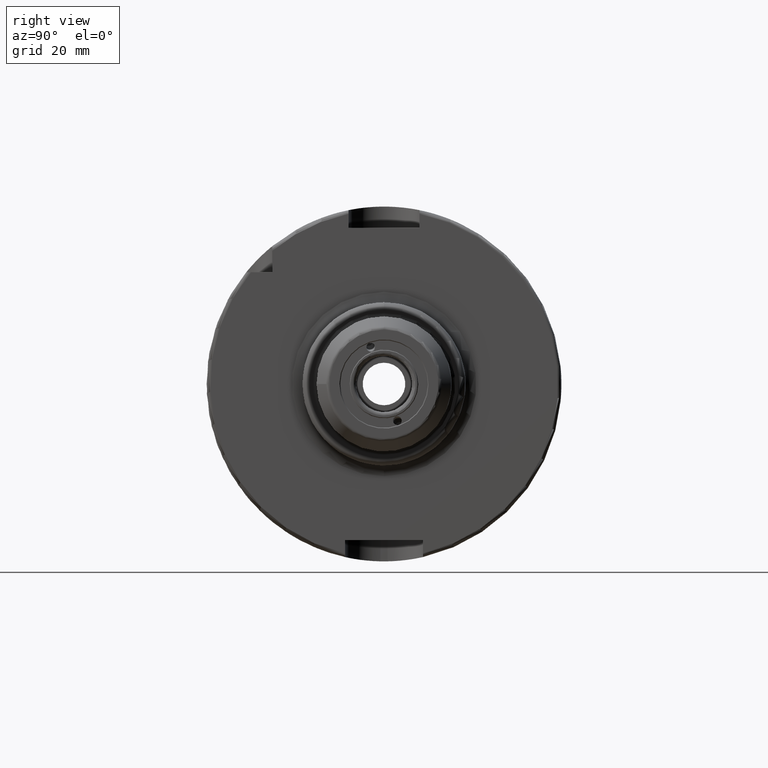
[diagram: clean part render]
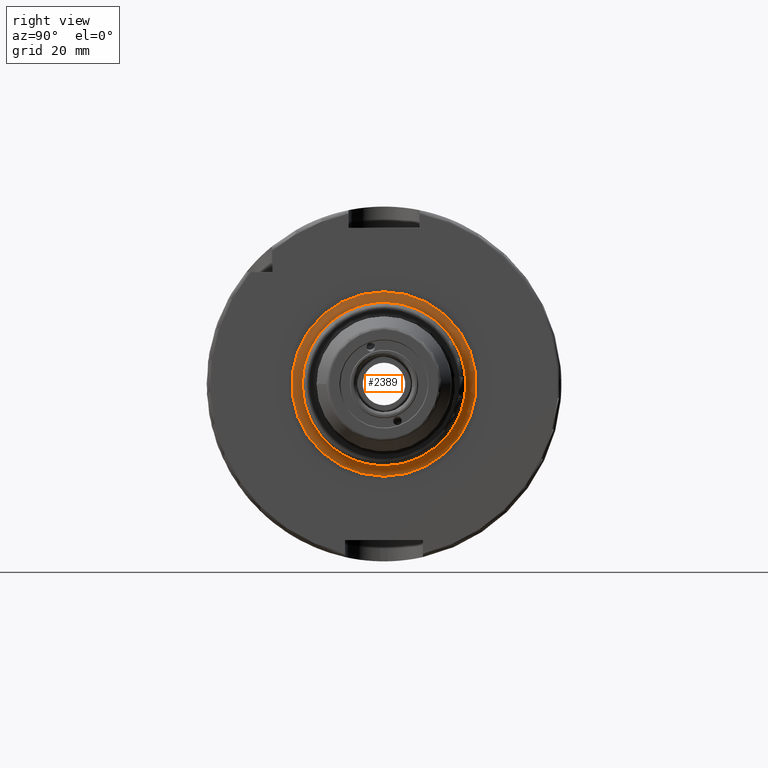
[diagram: same view with one face highlighted and labeled with its STEP entity id]
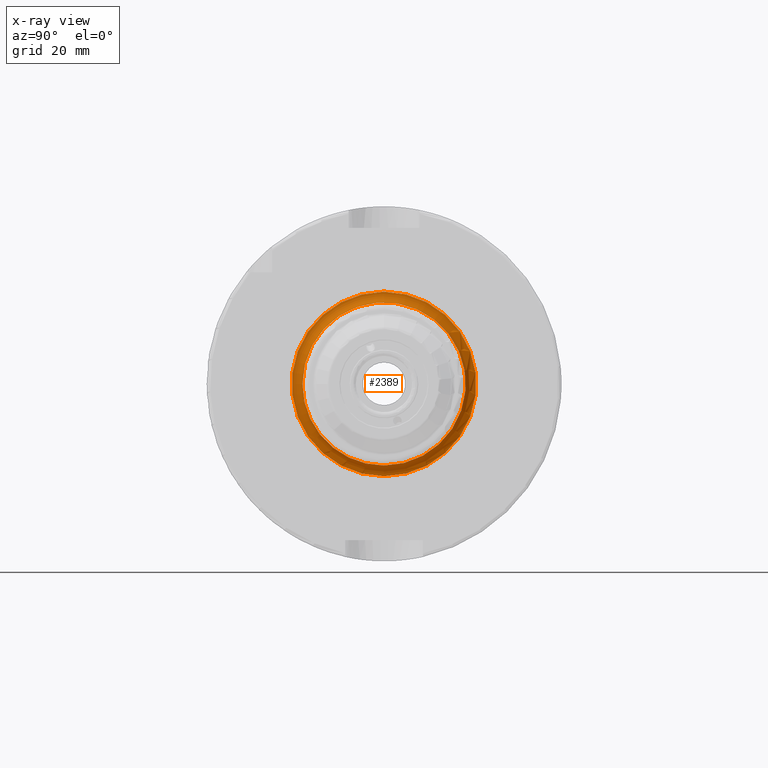
[diagram: x-ray of the same camera — body ghosted, the highlighted face saturated]
A machine part, right view. The second image highlights one B-rep face of the part: STEP entity #2389.
The next image is the same camera in x-ray: the body ghosted, the highlighted face saturated — about 0% of this face is hidden behind the body in this view.
In plain terms, the highlighted toroidal blend (fillet) surface has major radius 26 mm and minor (blend) radius 3 mm.
Its self-contained STEP definition (entity closure, byte-faithful):
#36=TOROIDAL_SURFACE('',#2589,26.,3.);
#160=CIRCLE('',#2587,23.);
#161=CIRCLE('',#2588,23.);
#162=CIRCLE('',#2590,3.);
#163=CIRCLE('',#2591,26.);
#329=FACE_OUTER_BOUND('',#477,.T.);
#477=EDGE_LOOP('',(#1712,#1713,#1714,#1715,#1716));
#987=VERTEX_POINT('',#3971);
#988=VERTEX_POINT('',#3973);
#989=VERTEX_POINT('',#3977);
#1261=EDGE_CURVE('',#988,#987,#160,.T.);
#1262=EDGE_CURVE('',#987,#988,#161,.T.);
#1263=EDGE_CURVE('',#988,#989,#162,.T.);
#1264=EDGE_CURVE('',#989,#989,#163,.T.);
#1712=ORIENTED_EDGE('',*,*,#1262,.T.);
#1713=ORIENTED_EDGE('',*,*,#1263,.T.);
#1714=ORIENTED_EDGE('',*,*,#1264,.T.);
#1715=ORIENTED_EDGE('',*,*,#1263,.F.);
#1716=ORIENTED_EDGE('',*,*,#1261,.T.);
#2389=ADVANCED_FACE('',(#329),#36,.F.);
#2587=AXIS2_PLACEMENT_3D('',#3974,#2973,#2974);
#2588=AXIS2_PLACEMENT_3D('',#3975,#2975,#2976);
#2589=AXIS2_PLACEMENT_3D('',#3976,#2977,#2978);
#2590=AXIS2_PLACEMENT_3D('',#3978,#2979,#2980);
#2591=AXIS2_PLACEMENT_3D('',#3979,#2981,#2982);
#2973=DIRECTION('center_axis',(-1.,0.,0.));
#2974=DIRECTION('ref_axis',(0.,-1.,-1.22464679914735E-16));
#2975=DIRECTION('center_axis',(-1.,0.,0.));
#2976=DIRECTION('ref_axis',(0.,-1.,-1.22464679914735E-16));
#2977=DIRECTION('center_axis',(-1.,0.,0.));
#2978=DIRECTION('ref_axis',(0.,0.,1.));
#2979=DIRECTION('center_axis',(0.,-1.,1.22464679914735E-16));
#2980=DIRECTION('ref_axis',(0.,-1.22464679914735E-16,-1.));
#2981=DIRECTION('center_axis',(1.,0.,0.));
#2982=DIRECTION('ref_axis',(0.,-1.,-1.22464679914735E-16));
#3971=CARTESIAN_POINT('',(32.,-23.,-2.81668763803891E-15));
#3973=CARTESIAN_POINT('',(32.,-2.81668763803891E-15,-23.));
#3974=CARTESIAN_POINT('Origin',(32.,0.,0.));
#3975=CARTESIAN_POINT('Origin',(32.,0.,0.));
#3976=CARTESIAN_POINT('Origin',(32.,0.,0.));
#3977=CARTESIAN_POINT('',(29.,-3.18408167778312E-15,-26.));
#3978=CARTESIAN_POINT('Origin',(32.,-3.18408167778312E-15,-26.));
#3979=CARTESIAN_POINT('Origin',(29.,0.,0.));